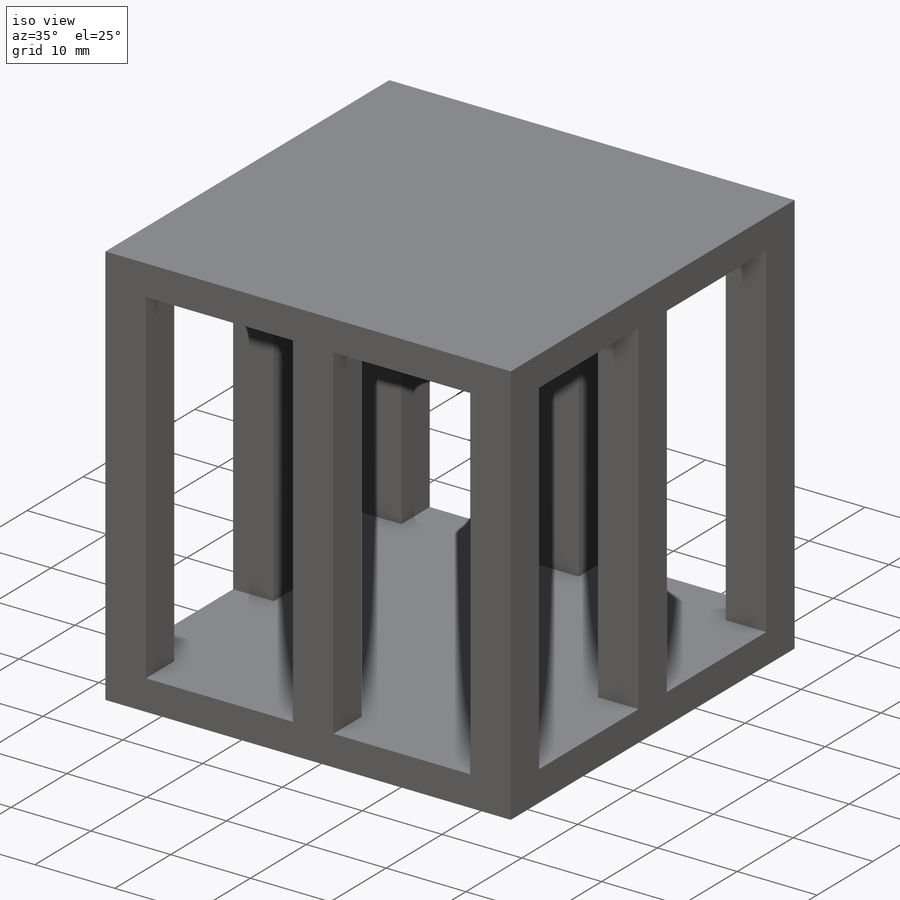
[diagram: iso view]
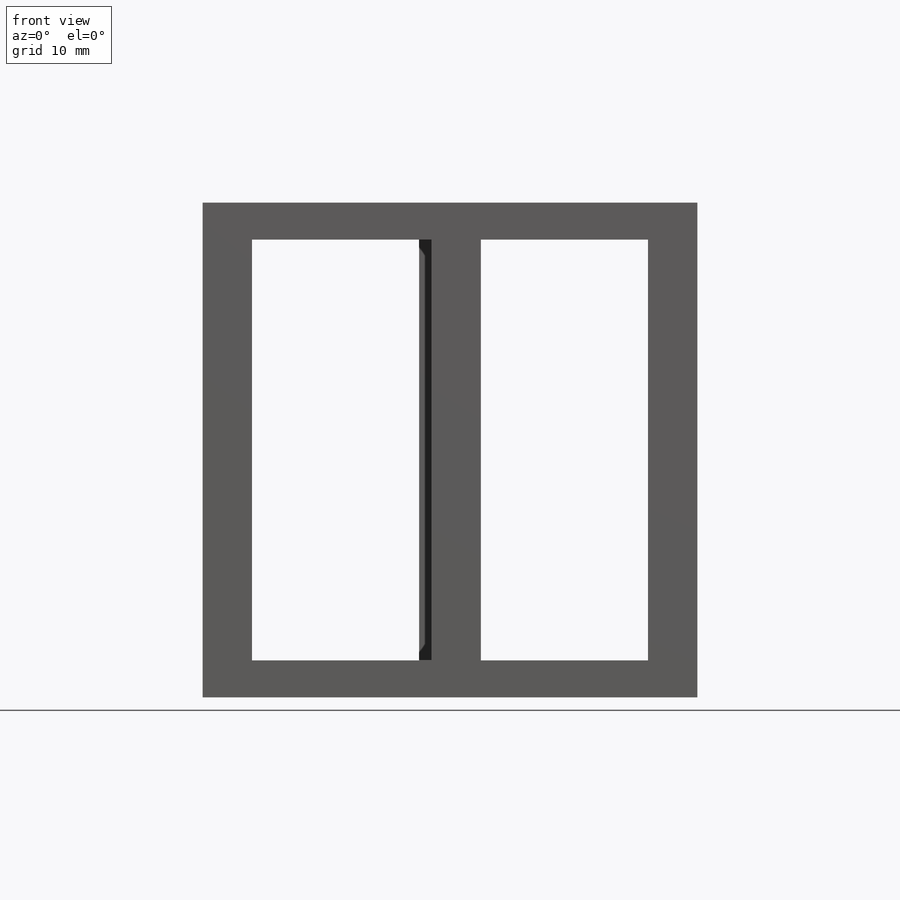
[diagram: front view]
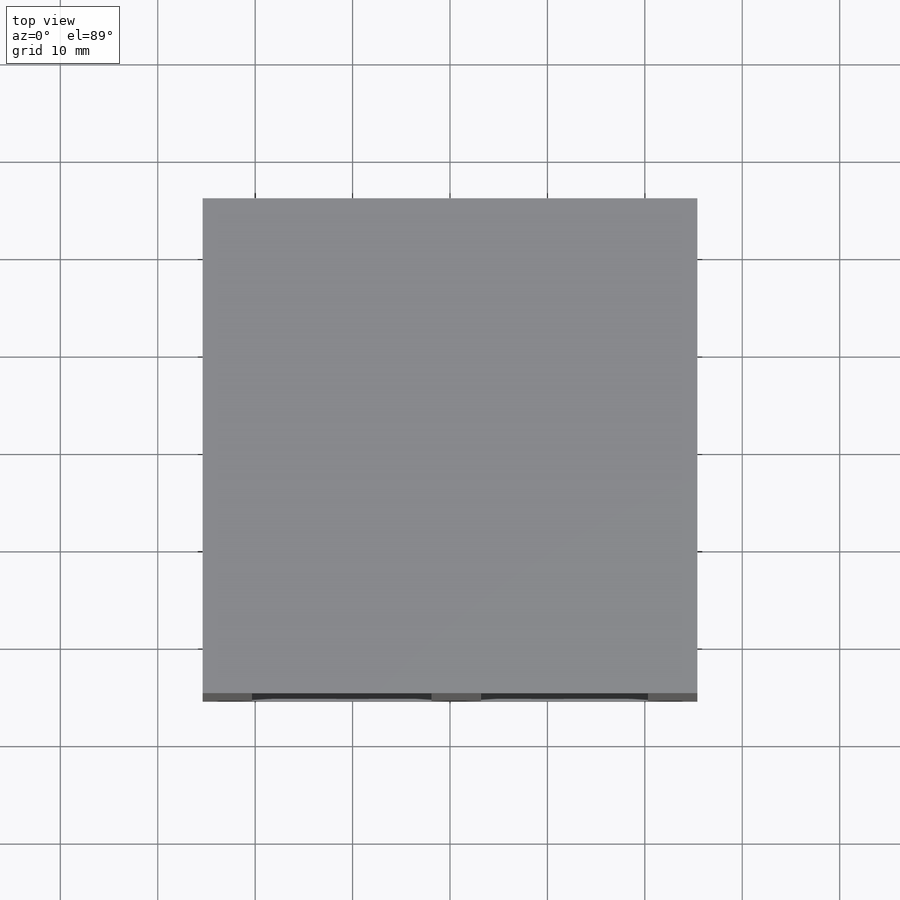
[diagram: top view]
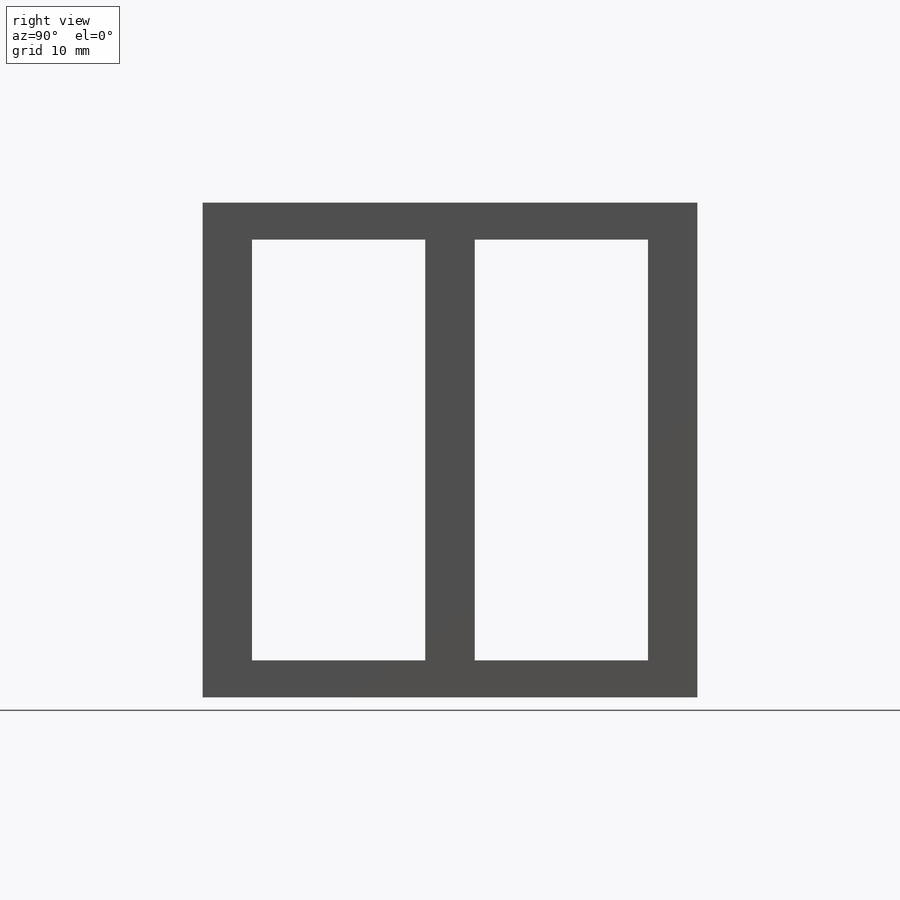
[diagram: right view]
SOLIDWORKS PART (.sldprt)
format: sldprt  version: not decoded by parser v0  size: 366,080 bytes
history: native  units: mm
features: sketch x3, extrude x3, pattern_linear x3, material x1, mirror x1 (+16 scaffold rows collapsed)
feature tree (27):
  scaffold x16  (default folders/planes/origin — collapsed)
  material  "Material <not specified>"
  sketch  "Sketch1"  dims[D1=5.08mm]
  extrude  "Boss-Extrude1"  Depth=43.18mm
  pattern_linear  "LPattern2"  Count1=3 Count2=1 Spacing1=22.86mm Spacing2=2.54mm
  mirror  "Mirror1"
  pattern_linear  "LPattern3"  Count1=2 Count2=1 Spacing1=23.495mm Spacing2=2.54mm
  pattern_linear  "LPattern4"  Count1=2 Count2=1 Spacing1=23.495mm Spacing2=2.54mm
  sketch  "Sketch2"
  extrude  "Boss-Extrude3"  Depth=3.81mm
  sketch  "Sketch3"
  extrude  "Boss-Extrude4"  Depth=3.81mm
decode coverage: 7 of 10 modeling features carry decoded parameters
note: suppression state not decoded; provenance and decode notes live in map.json
